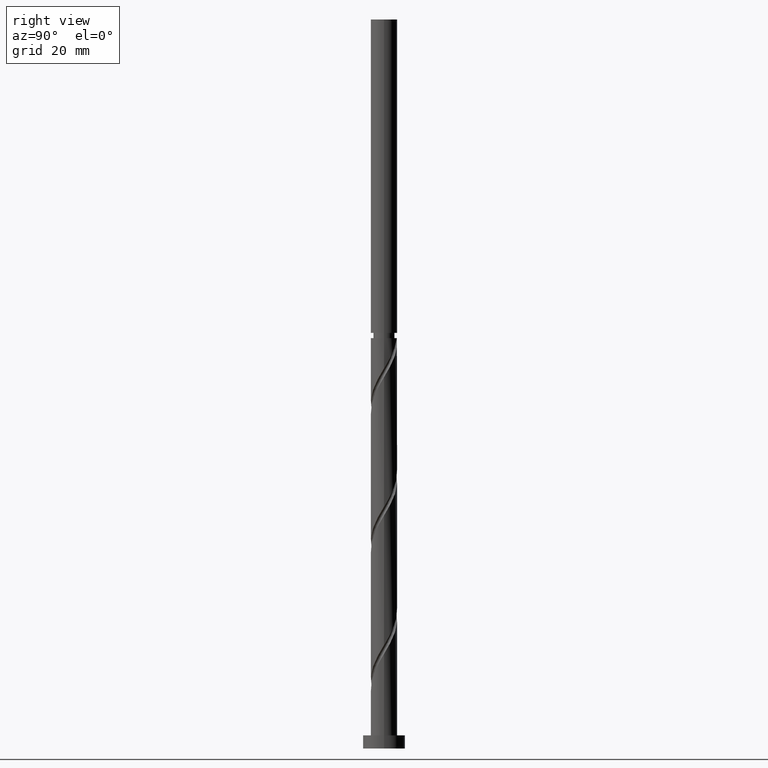
[diagram: clean part render]
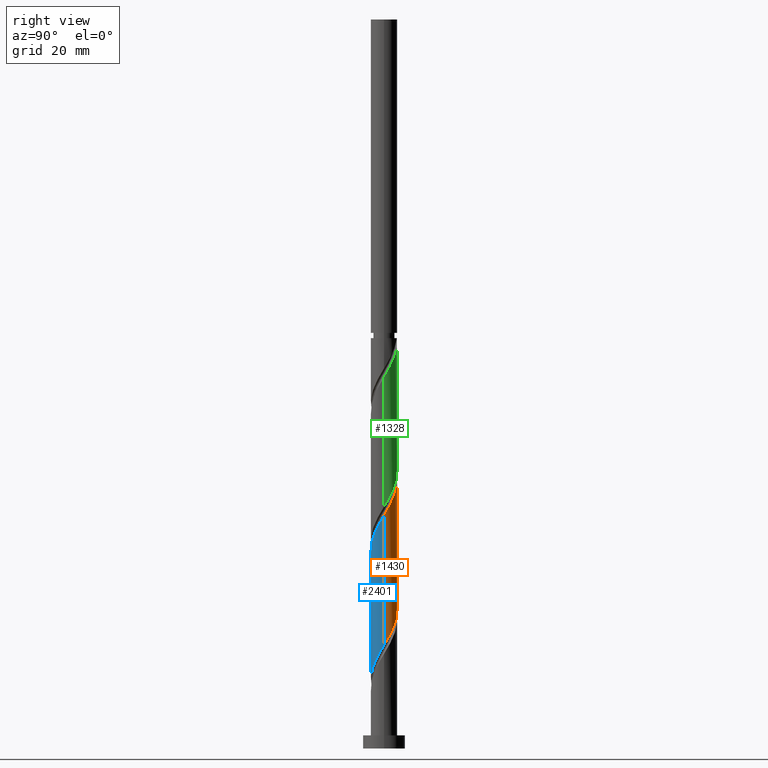
[diagram: same view with three faces highlighted in distinct colors, each labeled with its STEP entity id]
A machine part, right view with three faces highlighted in distinct colors.
Their STEP definitions:

[orange] entity #1430 — the highlighted cylindrical surface (edge-blend (fillet) strip) has radius 5 mm, axis along (-0, -0, -1).
#67 = CARTESIAN_POINT ( 'NONE',  ( -5.000000000000000000, 0.000000000000000000, 276.6500000000000341 ) ) ;
#92 = CARTESIAN_POINT ( 'NONE',  ( 4.194761370835346170, 2.778732953414366325, 44.15202953022191679 ) ) ;
#133 = CARTESIAN_POINT ( 'NONE',  ( -0.4428900315960752065, 5.012108159702488130, 102.2770295302218955 ) ) ;
#241 =( BOUNDED_CURVE ( )  B_SPLINE_CURVE ( 2, ( #1605, #1844, #1806, #1978, #922, #1479, #2227, #2030, #1858, #301, #538, #2356, #1989, #2043, #850, #1101, #355, #1223, #1673, #279, #2145, #653, #2213, #92, #2171, #1047, #2156, #840, #459, #2424, #666 ),
 .UNSPECIFIED., .F., .T. ) 
 B_SPLINE_CURVE_WITH_KNOTS ( ( 3, 2, 2, 2, 2, 2, 2, 2, 2, 2, 2, 2, 2, 2, 2, 3 ),
 ( 0.6795303401299219725, 0.6875000000000000000, 0.6964285714285713969, 0.7053571428571429047, 0.7142857142857143016, 0.7232142857142856984, 0.7321428571428570953, 0.7410714285714286031, 0.7500000000000000000, 0.7589285714285713969, 0.7678571428571429047, 0.7767857142857143016, 0.7857142857142856984, 0.7946428571428570953, 0.8035714285714286031, 0.8045303401299220836 ),
 .UNSPECIFIED. ) 
 CURVE ( )  GEOMETRIC_REPRESENTATION_ITEM ( )  RATIONAL_B_SPLINE_CURVE ( ( 0.9079949616361838727, 0.9039886423360468104, 0.9090909090909136125, 0.9033747362665885960, 0.9090909090909136125, 0.9033747362665885960, 0.9090909090909136125, 0.9033747362665885960, 0.9090909090909136125, 0.9033747362665885960, 0.9090909090909136125, 0.9033747362665885960, 0.9090909090909136125, 0.9033747362665885960, 0.9090909090909136125, 0.9033747362665885960, 0.9090909090909136125, 0.9033747362665885960, 0.9090909090909136125, 0.9033747362665885960, 0.9090909090909136125, 0.9033747362665885960, 0.9090909090909136125, 0.9033747362665885960, 0.9090909090909136125, 0.9033747362665885960, 0.9090909090909136125, 0.9033747362665885960, 0.9090909090909136125, 0.9084770030214553982, 0.9079949616361837617 ) ) 
 REPRESENTATION_ITEM ( '' )  );
#276 = DIRECTION ( 'NONE',  ( -0.000000000000000000, -0.000000000000000000, -1.000000000000000000 ) ) ;
#279 = CARTESIAN_POINT ( 'NONE',  ( 2.573702359565719799, 4.323590631524821148, 47.90202953022193100 ) ) ;
#300 = CARTESIAN_POINT ( 'NONE',  ( -4.707916197378425593, 1.775642098820955361, 111.6520295302218813 ) ) ;
#301 = CARTESIAN_POINT ( 'NONE',  ( -2.778732953414367657, 4.194761370835346170, 57.27702953022193810 ) ) ;
#310 = CARTESIAN_POINT ( 'NONE',  ( -4.194761370835350611, 2.778732953414372542, 109.7770295302219239 ) ) ;
#317 = CARTESIAN_POINT ( 'NONE',  ( 4.555741235911177966, 2.060393601091442761, 91.96452953022188126 ) ) ;
#346 = VERTEX_POINT ( 'NONE', #429 ) ;
#355 = CARTESIAN_POINT ( 'NONE',  ( 0.9949874371066218526, 4.899999999999999467, 50.71452953022192389 ) ) ;
#429 = CARTESIAN_POINT ( 'NONE',  ( -4.999999999999999112, -1.357499101782833371E-14, 65.51404660812798397 ) ) ;
#433 = AXIS2_PLACEMENT_3D ( 'NONE', #675, #1649, #1457 ) ;
#446 = CARTESIAN_POINT ( 'NONE',  ( 4.999999999999999112, -9.925639391815112352E-16, 39.26404660812797687 ) ) ;
#459 = CARTESIAN_POINT ( 'NONE',  ( 4.998552303470700231, 0.1203115516804383889, 39.46452953022191679 ) ) ;
#500 = CARTESIAN_POINT ( 'NONE',  ( 2.778732953414372986, 4.194761370835349723, 96.65202953022192389 ) ) ;
#538 = CARTESIAN_POINT ( 'NONE',  ( -2.277187526117658400, 4.451338784106882329, 56.33952953022192389 ) ) ;
#642 =( BOUNDED_CURVE ( )  B_SPLINE_CURVE ( 2, ( #2373, #2362, #2005, #2188, #317, #867, #1994, #681, #1441, #500, #1258, #1076, #1821, #1431, #1064, #133, #2382, #691, #1827, #1616, #1056, #2011, #2022, #310, #2216, #300, #2366, #1274, #860, #1435, #722 ),
 .UNSPECIFIED., .F., .T. ) 
 B_SPLINE_CURVE_WITH_KNOTS ( ( 3, 2, 2, 2, 2, 2, 2, 2, 2, 2, 2, 2, 2, 2, 2, 3 ),
 ( 0.4295303401299221946, 0.4375000000000000000, 0.4464285714285713969, 0.4553571428571429047, 0.4642857142857143016, 0.4732142857142856984, 0.4821428571428570953, 0.4910714285714286031, 0.5000000000000000000, 0.5089285714285713969, 0.5178571428571427937, 0.5267857142857143016, 0.5357142857142856984, 0.5446428571428572063, 0.5535714285714286031, 0.5545303401299223056 ),
 .UNSPECIFIED. ) 
 CURVE ( )  GEOMETRIC_REPRESENTATION_ITEM ( )  RATIONAL_B_SPLINE_CURVE ( ( 0.9079949616361900899, 0.9039886423360534717, 0.9090909090909201629, 0.9033747362665951464, 0.9090909090909201629, 0.9033747362665951464, 0.9090909090909201629, 0.9033747362665951464, 0.9090909090909201629, 0.9033747362665951464, 0.9090909090909201629, 0.9033747362665951464, 0.9090909090909201629, 0.9033747362665951464, 0.9090909090909201629, 0.9033747362665951464, 0.9090909090909201629, 0.9033747362665951464, 0.9090909090909201629, 0.9033747362665951464, 0.9090909090909201629, 0.9033747362665951464, 0.9090909090909201629, 0.9033747362665951464, 0.9090909090909201629, 0.9033747362665951464, 0.9090909090909201629, 0.9033747362665951464, 0.9090909090909201629, 0.9084770030214617265, 0.9079949616361899789 ) ) 
 REPRESENTATION_ITEM ( '' )  );
#653 = CARTESIAN_POINT ( 'NONE',  ( 3.471263693360514768, 3.642486534745250637, 46.02702953022192389 ) ) ;
#665 = EDGE_LOOP ( 'NONE', ( #1057, #1265, #1439, #2230 ) ) ;
#666 = CARTESIAN_POINT ( 'NONE',  ( 4.999999999999999112, -9.925639391815112352E-16, 39.26404660812797687 ) ) ;
#675 = CARTESIAN_POINT ( 'NONE',  ( 0.000000000000000000, 0.000000000000000000, 276.6500000000000341 ) ) ;
#681 = CARTESIAN_POINT ( 'NONE',  ( 3.642486534745257742, 3.471263693360517433, 94.77702953022192389 ) ) ;
#683 = EDGE_CURVE ( 'NONE', #2298, #861, #2073, .T. ) ;
#691 = CARTESIAN_POINT ( 'NONE',  ( -1.547084842617166167, 4.787891840297527679, 104.1520295302219097 ) ) ;
#722 = CARTESIAN_POINT ( 'NONE',  ( -5.000000000000008882, -5.395667128031785037E-15, 114.6650124523158780 ) ) ;
#783 = EDGE_CURVE ( 'NONE', #1037, #346, #1964, .T. ) ;
#840 = CARTESIAN_POINT ( 'NONE',  ( 4.984996447238920325, 0.6835131349569545378, 40.40202953022191679 ) ) ;
#850 = CARTESIAN_POINT ( 'NONE',  ( -0.1203115516804392909, 4.998552303470700231, 52.58952953022192389 ) ) ;
#860 = CARTESIAN_POINT ( 'NONE',  ( -4.998552303470705560, 0.1203115516804403873, 114.4645295302219097 ) ) ;
#861 = VERTEX_POINT ( 'NONE', #446 ) ;
#867 = CARTESIAN_POINT ( 'NONE',  ( 4.323590631524826478, 2.573702359565721576, 92.90202953022189547 ) ) ;
#922 = CARTESIAN_POINT ( 'NONE',  ( -4.555741235911170861, 2.060393601091441873, 61.96452953022190258 ) ) ;
#947 = CARTESIAN_POINT ( 'NONE',  ( -5.000000000000007994, -5.395667128031785825E-15, 114.6650124523158780 ) ) ;
#999 = EDGE_CURVE ( 'NONE', #346, #861, #241, .T. ) ;
#1037 = VERTEX_POINT ( 'NONE', #947 ) ;
#1047 = CARTESIAN_POINT ( 'NONE',  ( 4.707916197378419376, 1.775642098820950476, 42.27702953022191679 ) ) ;
#1056 = CARTESIAN_POINT ( 'NONE',  ( -3.022483026463119504, 3.983038583135042554, 106.9645295302218955 ) ) ;
#1057 = ORIENTED_EDGE ( 'NONE', *, *, #1404, .F. ) ;
#1064 = CARTESIAN_POINT ( 'NONE',  ( 0.1203115516804415808, 4.998552303470705560, 101.3395295302219097 ) ) ;
#1076 = CARTESIAN_POINT ( 'NONE',  ( 1.775642098820956027, 4.707916197378423817, 98.52702953022189547 ) ) ;
#1080 = FACE_OUTER_BOUND ( 'NONE', #665, .T. ) ;
#1101 = CARTESIAN_POINT ( 'NONE',  ( 0.4428900315960765388, 5.012108159702480137, 51.65202953022191679 ) ) ;
#1223 = CARTESIAN_POINT ( 'NONE',  ( 1.547084842617166389, 4.787891840297520574, 49.77702953022193810 ) ) ;
#1242 = VECTOR ( 'NONE', #276, 1000.000000000000000 ) ;
#1258 = CARTESIAN_POINT ( 'NONE',  ( 2.277187526117664174, 4.451338784106887658, 97.58952953022189547 ) ) ;
#1260 = CARTESIAN_POINT ( 'NONE',  ( 5.000000000000000000, 6.123233995736766282E-16, 276.6500000000000341 ) ) ;
#1265 = ORIENTED_EDGE ( 'NONE', *, *, #683, .T. ) ;
#1274 = CARTESIAN_POINT ( 'NONE',  ( -4.984996447238927431, 0.6835131349569573134, 113.5270295302219239 ) ) ;
#1404 = EDGE_CURVE ( 'NONE', #2298, #1037, #642, .T. ) ;
#1430 = ADVANCED_FACE ( 'NONE', ( #1080 ), #1998, .T. ) ;
#1431 = CARTESIAN_POINT ( 'NONE',  ( 0.6835131349569584236, 4.984996447238927431, 100.4020295302218955 ) ) ;
#1435 = CARTESIAN_POINT ( 'NONE',  ( -5.000000000000008882, 0.06016448583193929195, 114.5646497640908024 ) ) ;
#1439 = ORIENTED_EDGE ( 'NONE', *, *, #999, .F. ) ;
#1441 = CARTESIAN_POINT ( 'NONE',  ( 3.210609744079815364, 3.833012532097932468, 95.71452953022189547 ) ) ;
#1457 = DIRECTION ( 'NONE',  ( -1.000000000000000000, 0.000000000000000000, 0.000000000000000000 ) ) ;
#1479 = CARTESIAN_POINT ( 'NONE',  ( -4.323590631524821148, 2.573702359565718911, 61.02702953022193100 ) ) ;
#1605 = CARTESIAN_POINT ( 'NONE',  ( -4.999999999999999112, -1.357499101782833371E-14, 65.51404660812798397 ) ) ;
#1616 = CARTESIAN_POINT ( 'NONE',  ( -2.573702359565722464, 4.323590631524826478, 106.0270295302219097 ) ) ;
#1649 = DIRECTION ( 'NONE',  ( -0.000000000000000000, -0.000000000000000000, -1.000000000000000000 ) ) ;
#1673 = CARTESIAN_POINT ( 'NONE',  ( 2.060393601091442761, 4.555741235911169973, 48.83952953022191679 ) ) ;
#1806 = CARTESIAN_POINT ( 'NONE',  ( -4.899999999999999467, 0.9949874371066207424, 63.83952953022191679 ) ) ;
#1821 = CARTESIAN_POINT ( 'NONE',  ( 1.229577616888956726, 4.846456322308676512, 99.46452953022192389 ) ) ;
#1827 = CARTESIAN_POINT ( 'NONE',  ( -2.060393601091443649, 4.555741235911177966, 105.0895295302218955 ) ) ;
#1844 = CARTESIAN_POINT ( 'NONE',  ( -5.000000000000001776, 0.5025189076295997204, 64.67577552916439743 ) ) ;
#1858 = CARTESIAN_POINT ( 'NONE',  ( -3.210609744079810035, 3.833012532097928471, 58.21452953022190968 ) ) ;
#1919 = CARTESIAN_POINT ( 'NONE',  ( 5.000000000000006217, -1.686612407932480338E-15, 88.41501245231584960 ) ) ;
#1964 = LINE ( 'NONE', #67, #1242 ) ;
#1978 = CARTESIAN_POINT ( 'NONE',  ( -4.787891840297520574, 1.547084842617165279, 62.90202953022190968 ) ) ;
#1989 = CARTESIAN_POINT ( 'NONE',  ( -1.229577616888953617, 4.846456322308670295, 54.46452953022191679 ) ) ;
#1994 = CARTESIAN_POINT ( 'NONE',  ( 3.983038583135042998, 3.022483026463119504, 93.83952953022190968 ) ) ;
#1998 = CYLINDRICAL_SURFACE ( 'NONE', #433, 5.000000000000000000 ) ;
#2005 = CARTESIAN_POINT ( 'NONE',  ( 4.900000000000005684, 0.9949874371066202983, 90.08952953022190968 ) ) ;
#2011 = CARTESIAN_POINT ( 'NONE',  ( -3.471263693360517877, 3.642486534745257742, 107.9020295302219097 ) ) ;
#2022 = CARTESIAN_POINT ( 'NONE',  ( -3.833012532097932912, 3.210609744079815364, 108.8395295302219097 ) ) ;
#2030 = CARTESIAN_POINT ( 'NONE',  ( -3.642486534745251525, 3.471263693360513880, 59.15202953022193100 ) ) ;
#2043 = CARTESIAN_POINT ( 'NONE',  ( -0.6835131349569553150, 4.984996447238920325, 53.52702953022191679 ) ) ;
#2073 = LINE ( 'NONE', #1260, #2163 ) ;
#2145 = CARTESIAN_POINT ( 'NONE',  ( 3.022483026463116840, 3.983038583135035449, 46.96452953022191679 ) ) ;
#2156 = CARTESIAN_POINT ( 'NONE',  ( 4.846456322308671183, 1.229577616888952063, 41.33952953022192389 ) ) ;
#2163 = VECTOR ( 'NONE', #2211, 1000.000000000000000 ) ;
#2171 = CARTESIAN_POINT ( 'NONE',  ( 4.451338784106882329, 2.277187526117658400, 43.21452953022192389 ) ) ;
#2188 = CARTESIAN_POINT ( 'NONE',  ( 4.787891840297527679, 1.547084842617165057, 91.02702953022192389 ) ) ;
#2211 = DIRECTION ( 'NONE',  ( -0.000000000000000000, -0.000000000000000000, -1.000000000000000000 ) ) ;
#2213 = CARTESIAN_POINT ( 'NONE',  ( 3.833012532097928915, 3.210609744079808703, 45.08952953022190968 ) ) ;
#2216 = CARTESIAN_POINT ( 'NONE',  ( -4.451338784106888546, 2.277187526117663730, 110.7145295302218670 ) ) ;
#2227 = CARTESIAN_POINT ( 'NONE',  ( -3.983038583135036337, 3.022483026463115952, 60.08952953022190258 ) ) ;
#2230 = ORIENTED_EDGE ( 'NONE', *, *, #783, .F. ) ;
#2298 = VERTEX_POINT ( 'NONE', #1919 ) ;
#2356 = CARTESIAN_POINT ( 'NONE',  ( -1.775642098820952031, 4.707916197378419376, 55.40202953022191679 ) ) ;
#2362 = CARTESIAN_POINT ( 'NONE',  ( 5.000000000000005329, 0.5025189076296122659, 89.25328353127946457 ) ) ;
#2366 = CARTESIAN_POINT ( 'NONE',  ( -4.846456322308676512, 1.229577616888956282, 112.5895295302218955 ) ) ;
#2373 = CARTESIAN_POINT ( 'NONE',  ( 5.000000000000006217, -1.686612407932480338E-15, 88.41501245231584960 ) ) ;
#2382 = CARTESIAN_POINT ( 'NONE',  ( -0.9949874371066197432, 4.900000000000005684, 103.2145295302219097 ) ) ;
#2424 = CARTESIAN_POINT ( 'NONE',  ( 5.000000000000000000, 0.06016448583195129624, 39.36440929635306674 ) ) ;

[blue] entity #2401 — the highlighted cylindrical surface (edge-blend (fillet) strip) has radius 5 mm, axis along (-0, -0, -1).
#7 = CARTESIAN_POINT ( 'NONE',  ( 1.229577616888953173, -4.846456322308670295, 28.21452953022190613 ) ) ;
#19 = CARTESIAN_POINT ( 'NONE',  ( -4.194761370835346170, -2.778732953414366769, 17.90202953022190968 ) ) ;
#39 = CARTESIAN_POINT ( 'NONE',  ( 0.4428900315960757061, -5.012108159702488130, 76.02702953022195231 ) ) ;
#53 = CARTESIAN_POINT ( 'NONE',  ( 4.194761370835350611, -2.778732953414372986, 83.52702953022192389 ) ) ;
#152 = CARTESIAN_POINT ( 'NONE',  ( -2.573702359565719355, -4.323590631524821148, 21.65202953022190968 ) ) ;
#193 = CARTESIAN_POINT ( 'NONE',  ( 2.277187526117658400, -4.451338784106882329, 30.08952953022192389 ) ) ;
#212 = CARTESIAN_POINT ( 'NONE',  ( -0.1203115516804408452, -4.998552303470705560, 75.08952953022189547 ) ) ;
#220 = ORIENTED_EDGE ( 'NONE', *, *, #1072, .F. ) ;
#238 = CARTESIAN_POINT ( 'NONE',  ( -5.000000000000007994, -1.309736626513939719E-14, 62.16501245231589223 ) ) ;
#295 = CARTESIAN_POINT ( 'NONE',  ( 4.451338784106887658, -2.277187526117664174, 84.46452953022189547 ) ) ;
#371 = CARTESIAN_POINT ( 'NONE',  ( 4.323590631524821148, -2.573702359565719799, 34.77702953022193100 ) ) ;
#379 = CARTESIAN_POINT ( 'NONE',  ( -3.983038583135042554, -3.022483026463119504, 67.58952953022190968 ) ) ;
#385 = CARTESIAN_POINT ( 'NONE',  ( -1.547084842617165501, -4.787891840297520574, 23.52702953022193455 ) ) ;
#420 = CARTESIAN_POINT ( 'NONE',  ( 0.9949874371066205203, -4.900000000000005684, 76.96452953022190968 ) ) ;
#446 = CARTESIAN_POINT ( 'NONE',  ( 4.999999999999999112, -9.925639391815112352E-16, 39.26404660812797687 ) ) ;
#557 = CARTESIAN_POINT ( 'NONE',  ( 5.000000000000000888, -0.5025189076296072699, 38.42577552916437611 ) ) ;
#568 = CARTESIAN_POINT ( 'NONE',  ( 3.983038583135035449, -3.022483026463116840, 33.83952953022191679 ) ) ;
#574 = CARTESIAN_POINT ( 'NONE',  ( -4.555741235911177966, -2.060393601091443649, 65.71452953022190968 ) ) ;
#580 = CARTESIAN_POINT ( 'NONE',  ( 2.778732953414366769, -4.194761370835346170, 31.02702953022192034 ) ) ;
#604 = CARTESIAN_POINT ( 'NONE',  ( 3.022483026463119504, -3.983038583135042554, 80.71452953022189547 ) ) ;
#608 = CYLINDRICAL_SURFACE ( 'NONE', #2433, 5.000000000000000000 ) ;
#626 = CARTESIAN_POINT ( 'NONE',  ( 5.000000000000006217, -1.686612407932480338E-15, 88.41501245231584960 ) ) ;
#629 =( BOUNDED_CURVE ( )  B_SPLINE_CURVE ( 2, ( #238, #991, #2262, #1349, #574, #1334, #379, #1138, #2080, #1546, #2095, #1153, #1899, #1169, #212, #39, #420, #1709, #1914, #2291, #604, #1183, #1738, #53, #295, #834, #1238, #1973, #1387, #2130, #626 ),
 .UNSPECIFIED., .F., .T. ) 
 B_SPLINE_CURVE_WITH_KNOTS ( ( 3, 2, 2, 2, 2, 2, 2, 2, 2, 2, 2, 2, 2, 2, 2, 3 ),
 ( 0.3045303401299221946, 0.3125000000000000000, 0.3214285714285713969, 0.3303571428571429047, 0.3392857142857143016, 0.3482142857142856984, 0.3571428571428570953, 0.3660714285714286031, 0.3750000000000000000, 0.3839285714285713969, 0.3928571428571429047, 0.4017857142857143016, 0.4107142857142856984, 0.4196428571428570953, 0.4285714285714286031, 0.4295303401299221946 ),
 .UNSPECIFIED. ) 
 CURVE ( )  GEOMETRIC_REPRESENTATION_ITEM ( )  RATIONAL_B_SPLINE_CURVE ( ( 0.9079949616361900899, 0.9039886423360534717, 0.9090909090909201629, 0.9033747362665951464, 0.9090909090909201629, 0.9033747362665951464, 0.9090909090909201629, 0.9033747362665951464, 0.9090909090909201629, 0.9033747362665951464, 0.9090909090909201629, 0.9033747362665951464, 0.9090909090909201629, 0.9033747362665951464, 0.9090909090909201629, 0.9033747362665951464, 0.9090909090909201629, 0.9033747362665951464, 0.9090909090909201629, 0.9033747362665951464, 0.9090909090909201629, 0.9033747362665951464, 0.9090909090909201629, 0.9033747362665951464, 0.9090909090909201629, 0.9033747362665951464, 0.9090909090909201629, 0.9033747362665951464, 0.9090909090909201629, 0.9084770030214618375, 0.9079949616361900899 ) ) 
 REPRESENTATION_ITEM ( '' )  );
#683 = EDGE_CURVE ( 'NONE', #2298, #861, #2073, .T. ) ;
#712 = LINE ( 'NONE', #738, #2238 ) ;
#737 = DIRECTION ( 'NONE',  ( -1.000000000000000000, 0.000000000000000000, 0.000000000000000000 ) ) ;
#738 = CARTESIAN_POINT ( 'NONE',  ( -5.000000000000000000, 0.000000000000000000, 276.6500000000000341 ) ) ;
#752 = CARTESIAN_POINT ( 'NONE',  ( 0.6835131349569547599, -4.984996447238920325, 27.27702953022193810 ) ) ;
#766 = CARTESIAN_POINT ( 'NONE',  ( -4.998552303470700231, -0.1203115516804390411, 13.21452953022192389 ) ) ;
#834 = CARTESIAN_POINT ( 'NONE',  ( 4.707916197378425593, -1.775642098820955583, 85.40202953022190968 ) ) ;
#861 = VERTEX_POINT ( 'NONE', #446 ) ;
#914 = CARTESIAN_POINT ( 'NONE',  ( -4.984996447238920325, -0.6835131349569548709, 14.15202953022190435 ) ) ;
#939 = CARTESIAN_POINT ( 'NONE',  ( 1.775642098820951587, -4.707916197378419376, 29.15202953022191679 ) ) ;
#953 = CARTESIAN_POINT ( 'NONE',  ( -0.4428900315960770939, -5.012108159702480137, 25.40202953022191679 ) ) ;
#991 = CARTESIAN_POINT ( 'NONE',  ( -5.000000000000005329, -0.5025189076296129320, 63.00328353127945746 ) ) ;
#1015 = CARTESIAN_POINT ( 'NONE',  ( -5.000000000000000888, 1.429889103362237249E-14, 13.01404660812795555 ) ) ;
#1072 = EDGE_CURVE ( 'NONE', #2051, #2298, #629, .T. ) ;
#1108 = CARTESIAN_POINT ( 'NONE',  ( -4.451338784106882329, -2.277187526117658400, 16.96452953022192744 ) ) ;
#1121 = VERTEX_POINT ( 'NONE', #1015 ) ;
#1130 = CARTESIAN_POINT ( 'NONE',  ( 3.642486534745251525, -3.471263693360513880, 32.90202953022192389 ) ) ;
#1138 = CARTESIAN_POINT ( 'NONE',  ( -3.642486534745257742, -3.471263693360517877, 68.52702953022192389 ) ) ;
#1145 = CARTESIAN_POINT ( 'NONE',  ( -3.833012532097928471, -3.210609744079808703, 18.83952953022191679 ) ) ;
#1153 = CARTESIAN_POINT ( 'NONE',  ( -1.775642098820955583, -4.707916197378425593, 72.27702953022192389 ) ) ;
#1169 = CARTESIAN_POINT ( 'NONE',  ( -0.6835131349569575354, -4.984996447238927431, 74.15202953022190968 ) ) ;
#1183 = CARTESIAN_POINT ( 'NONE',  ( 3.471263693360517877, -3.642486534745257742, 81.65202953022193810 ) ) ;
#1238 = CARTESIAN_POINT ( 'NONE',  ( 4.846456322308676512, -1.229577616888956726, 86.33952953022189547 ) ) ;
#1260 = CARTESIAN_POINT ( 'NONE',  ( 5.000000000000000000, 6.123233995736766282E-16, 276.6500000000000341 ) ) ;
#1287 = CARTESIAN_POINT ( 'NONE',  ( 4.555741235911170861, -2.060393601091442761, 35.71452953022191679 ) ) ;
#1314 = CARTESIAN_POINT ( 'NONE',  ( 4.899999999999999467, -0.9949874371066214085, 37.58952953022191679 ) ) ;
#1326 = CARTESIAN_POINT ( 'NONE',  ( -0.9949874371066211864, -4.899999999999999467, 24.46452953022190968 ) ) ;
#1334 = CARTESIAN_POINT ( 'NONE',  ( -4.323590631524826478, -2.573702359565722020, 66.65202953022189547 ) ) ;
#1349 = CARTESIAN_POINT ( 'NONE',  ( -4.787891840297527679, -1.547084842617165945, 64.77702953022192389 ) ) ;
#1368 = CARTESIAN_POINT ( 'NONE',  ( 0.000000000000000000, 0.000000000000000000, 276.6500000000000341 ) ) ;
#1387 = CARTESIAN_POINT ( 'NONE',  ( 4.998552303470705560, -0.1203115516804412755, 88.21452953022190968 ) ) ;
#1436 = ORIENTED_EDGE ( 'NONE', *, *, #683, .F. ) ;
#1520 = CARTESIAN_POINT ( 'NONE',  ( -5.000000000000000000, -0.06016448583194498184, 13.11440929635305430 ) ) ;
#1546 = CARTESIAN_POINT ( 'NONE',  ( -2.778732953414372986, -4.194761370835350611, 70.40202953022190968 ) ) ;
#1633 = EDGE_CURVE ( 'NONE', #2051, #1121, #712, .T. ) ;
#1652 = CARTESIAN_POINT ( 'NONE',  ( -3.022483026463116840, -3.983038583135035449, 20.71452953022190258 ) ) ;
#1682 = EDGE_CURVE ( 'NONE', #861, #1121, #1889, .T. ) ;
#1702 = CARTESIAN_POINT ( 'NONE',  ( -3.471263693360513880, -3.642486534745251525, 19.77702953022192744 ) ) ;
#1709 = CARTESIAN_POINT ( 'NONE',  ( 1.547084842617165279, -4.787891840297527679, 77.90202953022190968 ) ) ;
#1738 = CARTESIAN_POINT ( 'NONE',  ( 3.833012532097932468, -3.210609744079815364, 82.58952953022190968 ) ) ;
#1830 = EDGE_LOOP ( 'NONE', ( #1436, #220, #2380, #2388 ) ) ;
#1851 = CARTESIAN_POINT ( 'NONE',  ( -4.707916197378419376, -1.775642098820951587, 16.02702953022192034 ) ) ;
#1889 =( BOUNDED_CURVE ( )  B_SPLINE_CURVE ( 2, ( #2244, #557, #1314, #2063, #1287, #371, #568, #1130, #2416, #580, #193, #939, #7, #752, #1890, #953, #1326, #385, #2036, #152, #1652, #1702, #1145, #19, #1108, #1851, #2232, #914, #766, #1520, #2268 ),
 .UNSPECIFIED., .F., .T. ) 
 B_SPLINE_CURVE_WITH_KNOTS ( ( 3, 2, 2, 2, 2, 2, 2, 2, 2, 2, 2, 2, 2, 2, 2, 3 ),
 ( 0.8045303401299220836, 0.8125000000000000000, 0.8214285714285713969, 0.8303571428571429047, 0.8392857142857143016, 0.8482142857142856984, 0.8571428571428570953, 0.8660714285714286031, 0.8750000000000000000, 0.8839285714285713969, 0.8928571428571429047, 0.9017857142857143016, 0.9107142857142856984, 0.9196428571428570953, 0.9285714285714286031, 0.9295303401299221946 ),
 .UNSPECIFIED. ) 
 CURVE ( )  GEOMETRIC_REPRESENTATION_ITEM ( )  RATIONAL_B_SPLINE_CURVE ( ( 0.9079949616361837617, 0.9039886423360469214, 0.9090909090909136125, 0.9033747362665885960, 0.9090909090909136125, 0.9033747362665885960, 0.9090909090909136125, 0.9033747362665885960, 0.9090909090909136125, 0.9033747362665885960, 0.9090909090909136125, 0.9033747362665885960, 0.9090909090909136125, 0.9033747362665885960, 0.9090909090909136125, 0.9033747362665885960, 0.9090909090909136125, 0.9033747362665885960, 0.9090909090909136125, 0.9033747362665885960, 0.9090909090909136125, 0.9033747362665885960, 0.9090909090909136125, 0.9033747362665885960, 0.9090909090909136125, 0.9033747362665885960, 0.9090909090909136125, 0.9033747362665885960, 0.9090909090909136125, 0.9084770030214552872, 0.9079949616361835396 ) ) 
 REPRESENTATION_ITEM ( '' )  );
#1890 = CARTESIAN_POINT ( 'NONE',  ( 0.1203115516804388052, -4.998552303470700231, 26.33952953022192744 ) ) ;
#1899 = CARTESIAN_POINT ( 'NONE',  ( -1.229577616888956504, -4.846456322308676512, 73.21452953022189547 ) ) ;
#1914 = CARTESIAN_POINT ( 'NONE',  ( 2.060393601091443205, -4.555741235911177966, 78.83952953022190968 ) ) ;
#1919 = CARTESIAN_POINT ( 'NONE',  ( 5.000000000000006217, -1.686612407932480338E-15, 88.41501245231584960 ) ) ;
#1973 = CARTESIAN_POINT ( 'NONE',  ( 4.984996447238927431, -0.6835131349569582015, 87.27702953022190968 ) ) ;
#1986 = CARTESIAN_POINT ( 'NONE',  ( -5.000000000000007994, -1.309736626513939719E-14, 62.16501245231589223 ) ) ;
#2036 = CARTESIAN_POINT ( 'NONE',  ( -2.060393601091442317, -4.555741235911170861, 22.58952953022192389 ) ) ;
#2051 = VERTEX_POINT ( 'NONE', #1986 ) ;
#2063 = CARTESIAN_POINT ( 'NONE',  ( 4.787891840297520574, -1.547084842617165945, 36.65202953022191679 ) ) ;
#2073 = LINE ( 'NONE', #1260, #2163 ) ;
#2080 = CARTESIAN_POINT ( 'NONE',  ( -3.210609744079815364, -3.833012532097932912, 69.46452953022192389 ) ) ;
#2095 = CARTESIAN_POINT ( 'NONE',  ( -2.277187526117663730, -4.451338784106887658, 71.33952953022190968 ) ) ;
#2130 = CARTESIAN_POINT ( 'NONE',  ( 5.000000000000007105, -0.06016448583194711208, 88.31464976409078815 ) ) ;
#2163 = VECTOR ( 'NONE', #2211, 1000.000000000000000 ) ;
#2211 = DIRECTION ( 'NONE',  ( -0.000000000000000000, -0.000000000000000000, -1.000000000000000000 ) ) ;
#2232 = CARTESIAN_POINT ( 'NONE',  ( -4.846456322308670295, -1.229577616888953173, 15.08952953022191501 ) ) ;
#2238 = VECTOR ( 'NONE', #2257, 1000.000000000000000 ) ;
#2244 = CARTESIAN_POINT ( 'NONE',  ( 4.999999999999999112, -9.925639391815112352E-16, 39.26404660812797687 ) ) ;
#2257 = DIRECTION ( 'NONE',  ( -0.000000000000000000, -0.000000000000000000, -1.000000000000000000 ) ) ;
#2262 = CARTESIAN_POINT ( 'NONE',  ( -4.900000000000005684, -0.9949874371066209644, 63.83952953022189547 ) ) ;
#2268 = CARTESIAN_POINT ( 'NONE',  ( -5.000000000000000888, 1.429889103362237249E-14, 13.01404660812795555 ) ) ;
#2291 = CARTESIAN_POINT ( 'NONE',  ( 2.573702359565722020, -4.323590631524826478, 79.77702953022192389 ) ) ;
#2295 = FACE_OUTER_BOUND ( 'NONE', #1830, .T. ) ;
#2298 = VERTEX_POINT ( 'NONE', #1919 ) ;
#2380 = ORIENTED_EDGE ( 'NONE', *, *, #1633, .T. ) ;
#2388 = ORIENTED_EDGE ( 'NONE', *, *, #1682, .F. ) ;
#2401 = ADVANCED_FACE ( 'NONE', ( #2295 ), #608, .T. ) ;
#2416 = CARTESIAN_POINT ( 'NONE',  ( 3.210609744079808703, -3.833012532097928915, 31.96452953022191323 ) ) ;
#2427 = DIRECTION ( 'NONE',  ( -0.000000000000000000, -0.000000000000000000, -1.000000000000000000 ) ) ;
#2433 = AXIS2_PLACEMENT_3D ( 'NONE', #1368, #2427, #737 ) ;

[green] entity #1328 — the highlighted cylindrical surface (edge-blend (fillet) strip) has radius 5 mm, axis along (-0, -0, -1).
#37 = CARTESIAN_POINT ( 'NONE',  ( -0.9949874371065917655, 4.900000000000003020, 155.7145295302217960 ) ) ;
#43 = CARTESIAN_POINT ( 'NONE',  ( -5.000000000000000000, 0.000000000000000000, 276.6500000000000341 ) ) ;
#63 = CARTESIAN_POINT ( 'NONE',  ( -3.983038583135036337, 3.022483026463115952, 112.5895295302219097 ) ) ;
#79 = AXIS2_PLACEMENT_3D ( 'NONE', #231, #2243, #383 ) ;
#85 = CARTESIAN_POINT ( 'NONE',  ( -2.778732953414367657, 4.194761370835346170, 109.7770295302219523 ) ) ;
#141 =( BOUNDED_CURVE ( )  B_SPLINE_CURVE ( 2, ( #1761, #1752, #1591, #2139, #1407, #1040, #63, #453, #431, #85, #1052, #1983, #845, #1195, #262, #616, #1799, #804, #2317, #1558, #1600, #273, #285, #443, #1027, #1217, #1205, #2340, #1775, #1004, #1570 ),
 .UNSPECIFIED., .F., .T. ) 
 B_SPLINE_CURVE_WITH_KNOTS ( ( 3, 2, 2, 2, 2, 2, 2, 2, 2, 2, 2, 2, 2, 2, 2, 3 ),
 ( 0.4295303401299221946, 0.4375000000000000000, 0.4464285714285714524, 0.4553571428571428492, 0.4642857142857143016, 0.4732142857142856984, 0.4821428571428571508, 0.4910714285714285476, 0.5000000000000000000, 0.5089285714285713969, 0.5178571428571429047, 0.5267857142857143016, 0.5357142857142856984, 0.5446428571428570953, 0.5535714285714286031, 0.5545303401299220836 ),
 .UNSPECIFIED. ) 
 CURVE ( )  GEOMETRIC_REPRESENTATION_ITEM ( )  RATIONAL_B_SPLINE_CURVE ( ( 0.9079949616361835396, 0.9039886423360470324, 0.9090909090909136125, 0.9033747362665885960, 0.9090909090909136125, 0.9033747362665885960, 0.9090909090909136125, 0.9033747362665885960, 0.9090909090909136125, 0.9033747362665885960, 0.9090909090909136125, 0.9033747362665885960, 0.9090909090909136125, 0.9033747362665885960, 0.9090909090909136125, 0.9033747362665885960, 0.9090909090909136125, 0.9033747362665885960, 0.9090909090909136125, 0.9033747362665885960, 0.9090909090909136125, 0.9033747362665885960, 0.9090909090909136125, 0.9033747362665885960, 0.9090909090909136125, 0.9033747362665885960, 0.9090909090909136125, 0.9033747362665885960, 0.9090909090909136125, 0.9084770030214553982, 0.9079949616361837617 ) ) 
 REPRESENTATION_ITEM ( '' )  );
#231 = CARTESIAN_POINT ( 'NONE',  ( 0.000000000000000000, 0.000000000000000000, 155.7145295302219097 ) ) ;
#255 = CARTESIAN_POINT ( 'NONE',  ( 3.210609744079815364, 3.833012532097932468, 148.2145295302219097 ) ) ;
#262 = CARTESIAN_POINT ( 'NONE',  ( -0.1203115516804392909, 4.998552303470700231, 105.0895295302219097 ) ) ;
#266 = CARTESIAN_POINT ( 'NONE',  ( -0.9949874371065917655, 4.900000000000003020, 155.7145295302218244 ) ) ;
#273 = CARTESIAN_POINT ( 'NONE',  ( 3.471263693360514768, 3.642486534745250637, 98.52702953022192389 ) ) ;
#285 = CARTESIAN_POINT ( 'NONE',  ( 3.833012532097928915, 3.210609744079808703, 97.58952953022190968 ) ) ;
#331 = CARTESIAN_POINT ( 'NONE',  ( 5.000000000000007994, -2.432901084008798987E-15, 140.9150124523158354 ) ) ;
#335 = VERTEX_POINT ( 'NONE', #37 ) ;
#337 = ORIENTED_EDGE ( 'NONE', *, *, #2331, .T. ) ;
#383 = DIRECTION ( 'NONE',  ( -1.000000000000000000, 0.000000000000000000, 0.000000000000000000 ) ) ;
#431 = CARTESIAN_POINT ( 'NONE',  ( -3.210609744079810035, 3.833012532097928471, 110.7145295302219097 ) ) ;
#443 = CARTESIAN_POINT ( 'NONE',  ( 4.194761370835346170, 2.778732953414366325, 96.65202953022192389 ) ) ;
#453 = CARTESIAN_POINT ( 'NONE',  ( -3.642486534745251525, 3.471263693360513880, 111.6520295302219523 ) ) ;
#472 = VECTOR ( 'NONE', #2124, 1000.000000000000000 ) ;
#489 = CARTESIAN_POINT ( 'NONE',  ( 0.000000000000000000, 0.000000000000000000, 276.6500000000000341 ) ) ;
#533 = VERTEX_POINT ( 'NONE', #952 ) ;
#578 = CARTESIAN_POINT ( 'NONE',  ( 5.000000000000007994, -2.432901084008798987E-15, 140.9150124523158354 ) ) ;
#616 = CARTESIAN_POINT ( 'NONE',  ( 0.4428900315960765388, 5.012108159702480137, 104.1520295302219097 ) ) ;
#657 = EDGE_CURVE ( 'NONE', #2194, #2419, #2311, .T. ) ;
#671 = DIRECTION ( 'NONE',  ( -0.000000000000000000, -0.000000000000000000, -1.000000000000000000 ) ) ;
#705 = CARTESIAN_POINT ( 'NONE',  ( 2.778732953414372986, 4.194761370835349723, 149.1520295302218528 ) ) ;
#740 = AXIS2_PLACEMENT_3D ( 'NONE', #489, #671, #1451 ) ;
#796 = DIRECTION ( 'NONE',  ( -0.000000000000000000, -0.000000000000000000, -1.000000000000000000 ) ) ;
#804 = CARTESIAN_POINT ( 'NONE',  ( 1.547084842617166389, 4.787891840297520574, 102.2770295302219239 ) ) ;
#818 = CARTESIAN_POINT ( 'NONE',  ( 1.229577616888956726, 4.846456322308676512, 151.9645295302219097 ) ) ;
#824 = CARTESIAN_POINT ( 'NONE',  ( -4.999999999999993783, 0.000000000000000000, 155.7145295302219097 ) ) ;
#845 = CARTESIAN_POINT ( 'NONE',  ( -1.229577616888953617, 4.846456322308670295, 106.9645295302218955 ) ) ;
#865 = EDGE_CURVE ( 'NONE', #2194, #335, #2167, .T. ) ;
#952 = CARTESIAN_POINT ( 'NONE',  ( -4.999999999999999112, 6.589729009753941734E-15, 118.0140466081279413 ) ) ;
#1004 = CARTESIAN_POINT ( 'NONE',  ( 5.000000000000000000, 0.06016448583195129624, 91.86440929635304542 ) ) ;
#1019 = CARTESIAN_POINT ( 'NONE',  ( 3.983038583135042998, 3.022483026463119504, 146.3395295302218813 ) ) ;
#1027 = CARTESIAN_POINT ( 'NONE',  ( 4.451338784106882329, 2.277187526117658400, 95.71452953022189547 ) ) ;
#1040 = CARTESIAN_POINT ( 'NONE',  ( -4.323590631524821148, 2.573702359565718911, 113.5270295302219239 ) ) ;
#1052 = CARTESIAN_POINT ( 'NONE',  ( -2.277187526117658400, 4.451338784106882329, 108.8395295302219097 ) ) ;
#1086 = CARTESIAN_POINT ( 'NONE',  ( 5.000000000000007105, 0.5025189076296052715, 141.7532835312793793 ) ) ;
#1099 = EDGE_CURVE ( 'NONE', #533, #2419, #141, .T. ) ;
#1195 = CARTESIAN_POINT ( 'NONE',  ( -0.6835131349569553150, 4.984996447238920325, 106.0270295302219097 ) ) ;
#1205 = CARTESIAN_POINT ( 'NONE',  ( 4.846456322308671183, 1.229577616888952063, 93.83952953022190968 ) ) ;
#1209 = CARTESIAN_POINT ( 'NONE',  ( 4.323590631524826478, 2.573702359565721576, 145.4020295302219381 ) ) ;
#1217 = CARTESIAN_POINT ( 'NONE',  ( 4.707916197378419376, 1.775642098820950476, 94.77702953022193810 ) ) ;
#1279 = CARTESIAN_POINT ( 'NONE',  ( 1.775642098820956027, 4.707916197378423817, 151.0270295302219381 ) ) ;
#1290 = VERTEX_POINT ( 'NONE', #824 ) ;
#1328 = ADVANCED_FACE ( 'NONE', ( #2164 ), #1812, .T. ) ;
#1380 = CARTESIAN_POINT ( 'NONE',  ( 5.000000000000000000, 6.123233995736766282E-16, 276.6500000000000341 ) ) ;
#1384 = VECTOR ( 'NONE', #796, 1000.000000000000000 ) ;
#1407 = CARTESIAN_POINT ( 'NONE',  ( -4.555741235911170861, 2.060393601091441873, 114.4645295302219239 ) ) ;
#1451 = DIRECTION ( 'NONE',  ( -1.000000000000000000, 0.000000000000000000, 0.000000000000000000 ) ) ;
#1458 = ORIENTED_EDGE ( 'NONE', *, *, #2348, .F. ) ;
#1465 = CARTESIAN_POINT ( 'NONE',  ( 2.277187526117664174, 4.451338784106887658, 150.0895295302218813 ) ) ;
#1497 = CARTESIAN_POINT ( 'NONE',  ( 4.999999999999999112, -9.925639391815112352E-16, 91.76404660812796976 ) ) ;
#1558 = CARTESIAN_POINT ( 'NONE',  ( 2.573702359565719799, 4.323590631524821148, 100.4020295302218955 ) ) ;
#1570 = CARTESIAN_POINT ( 'NONE',  ( 4.999999999999999112, -9.925639391815112352E-16, 91.76404660812796976 ) ) ;
#1573 = CARTESIAN_POINT ( 'NONE',  ( 0.1203115516804415808, 4.998552303470705560, 153.8395295302218244 ) ) ;
#1591 = CARTESIAN_POINT ( 'NONE',  ( -4.899999999999999467, 0.9949874371066207424, 116.3395295302219239 ) ) ;
#1600 = CARTESIAN_POINT ( 'NONE',  ( 3.022483026463116840, 3.983038583135035449, 99.46452953022192389 ) ) ;
#1679 = ORIENTED_EDGE ( 'NONE', *, *, #1099, .F. ) ;
#1727 = LINE ( 'NONE', #43, #1384 ) ;
#1752 = CARTESIAN_POINT ( 'NONE',  ( -4.999999999999998224, 0.5025189076296165958, 117.1757755291643406 ) ) ;
#1755 = CARTESIAN_POINT ( 'NONE',  ( 0.6835131349569584236, 4.984996447238927431, 152.9020295302219097 ) ) ;
#1761 = CARTESIAN_POINT ( 'NONE',  ( -4.999999999999999112, 6.589729009753941734E-15, 118.0140466081279413 ) ) ;
#1775 = CARTESIAN_POINT ( 'NONE',  ( 4.998552303470700231, 0.1203115516804383889, 91.96452953022190968 ) ) ;
#1799 = CARTESIAN_POINT ( 'NONE',  ( 0.9949874371066218526, 4.899999999999999467, 103.2145295302219097 ) ) ;
#1812 = CYLINDRICAL_SURFACE ( 'NONE', #740, 5.000000000000000000 ) ;
#1833 = CARTESIAN_POINT ( 'NONE',  ( 4.787891840297527679, 1.547084842617165057, 143.5270295302219097 ) ) ;
#1885 = CIRCLE ( 'NONE', #79, 4.999999999999993783 ) ;
#1954 = CARTESIAN_POINT ( 'NONE',  ( 3.642486534745257742, 3.471263693360517433, 147.2770295302219665 ) ) ;
#1983 = CARTESIAN_POINT ( 'NONE',  ( -1.775642098820952031, 4.707916197378419376, 107.9020295302219381 ) ) ;
#2052 = ORIENTED_EDGE ( 'NONE', *, *, #657, .T. ) ;
#2124 = DIRECTION ( 'NONE',  ( -0.000000000000000000, -0.000000000000000000, -1.000000000000000000 ) ) ;
#2139 = CARTESIAN_POINT ( 'NONE',  ( -4.787891840297520574, 1.547084842617165279, 115.4020295302219381 ) ) ;
#2142 = CARTESIAN_POINT ( 'NONE',  ( 4.900000000000005684, 0.9949874371066202983, 142.5895295302218528 ) ) ;
#2164 = FACE_OUTER_BOUND ( 'NONE', #2234, .T. ) ;
#2167 =( BOUNDED_CURVE ( )  B_SPLINE_CURVE ( 2, ( #331, #1086, #2142, #1833, #2394, #1209, #1019, #1954, #255, #705, #1465, #1279, #818, #1755, #1573, #2320, #266 ),
 .UNSPECIFIED., .F., .T. ) 
 B_SPLINE_CURVE_WITH_KNOTS ( ( 3, 2, 2, 2, 2, 2, 2, 2, 3 ),
 ( 0.6795303401299220836, 0.6875000000000000000, 0.6964285714285713969, 0.7053571428571426827, 0.7142857142857141906, 0.7232142857142855874, 0.7321428571428569843, 0.7410714285714283811, 0.7499999999999997780 ),
 .UNSPECIFIED. ) 
 CURVE ( )  GEOMETRIC_REPRESENTATION_ITEM ( )  RATIONAL_B_SPLINE_CURVE ( ( 0.9079949616361903120, 0.9039886423360534717, 0.9090909090909201629, 0.9033747362665951464, 0.9090909090909201629, 0.9033747362665951464, 0.9090909090909201629, 0.9033747362665951464, 0.9090909090909201629, 0.9033747362665951464, 0.9090909090909201629, 0.9033747362665951464, 0.9090909090909201629, 0.9033747362665951464, 0.9090909090909201629, 0.9033747362665953684, 0.9090909090909199408 ) ) 
 REPRESENTATION_ITEM ( '' )  );
#2194 = VERTEX_POINT ( 'NONE', #578 ) ;
#2208 = ORIENTED_EDGE ( 'NONE', *, *, #865, .F. ) ;
#2234 = EDGE_LOOP ( 'NONE', ( #2208, #2052, #1679, #1458, #337 ) ) ;
#2243 = DIRECTION ( 'NONE',  ( -0.000000000000000000, -0.000000000000000000, -1.000000000000000000 ) ) ;
#2311 = LINE ( 'NONE', #1380, #472 ) ;
#2317 = CARTESIAN_POINT ( 'NONE',  ( 2.060393601091442761, 4.555741235911169973, 101.3395295302218955 ) ) ;
#2320 = CARTESIAN_POINT ( 'NONE',  ( -0.4428900315960610512, 5.012108159702486354, 154.7770295302218528 ) ) ;
#2331 = EDGE_CURVE ( 'NONE', #1290, #335, #1885, .T. ) ;
#2340 = CARTESIAN_POINT ( 'NONE',  ( 4.984996447238920325, 0.6835131349569545378, 92.90202953022193810 ) ) ;
#2348 = EDGE_CURVE ( 'NONE', #1290, #533, #1727, .T. ) ;
#2394 = CARTESIAN_POINT ( 'NONE',  ( 4.555741235911177966, 2.060393601091442761, 144.4645295302218528 ) ) ;
#2419 = VERTEX_POINT ( 'NONE', #1497 ) ;